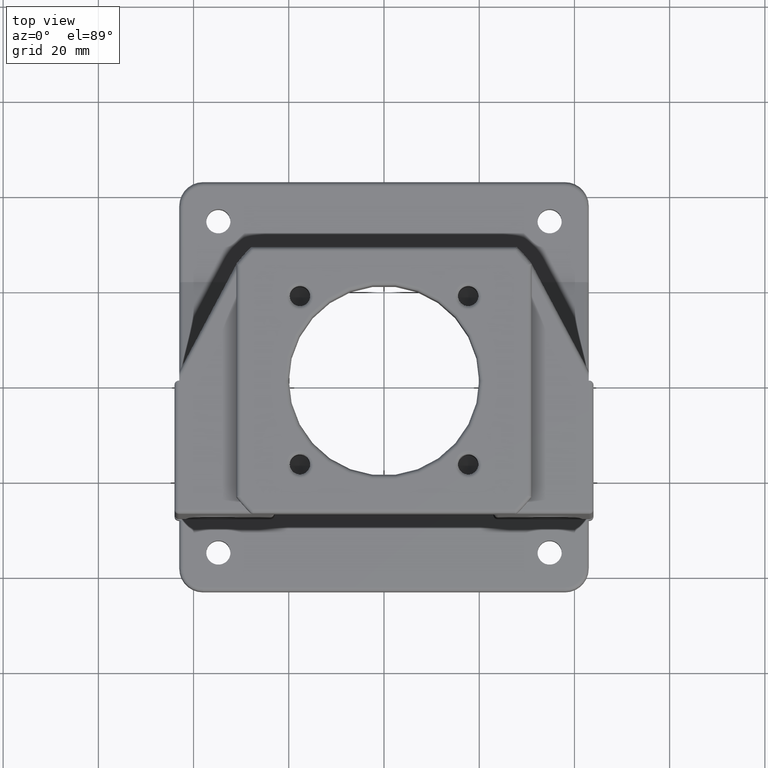
[diagram: clean part render]
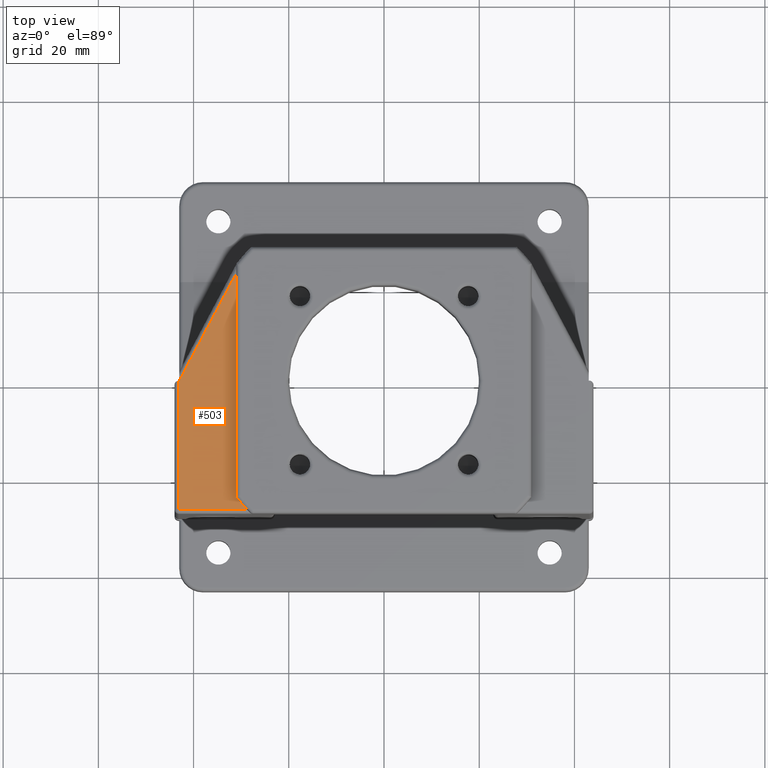
[diagram: same view with one face highlighted and labeled with its STEP entity id]
A machine part, top view. The second image highlights one B-rep face of the part: STEP entity #503.
In plain terms, the highlighted planar face has unit normal (0, 0, 1).
Its self-contained STEP definition (entity closure, byte-faithful):
#137 = PLANE ( 'NONE',  #4876 ) ;
#140 = DIRECTION ( 'NONE',  ( 1.000000000000000000, 0.0000000000000000000, -0.0000000000000000000 ) ) ;
#141 = DIRECTION ( 'NONE',  ( 0.0000000000000000000, 0.0000000000000000000, 1.000000000000000000 ) ) ;
#142 = CARTESIAN_POINT ( 'NONE',  ( -43.00000000000000000, -42.99999999999999300, 81.00000000000000000 ) ) ;
#503 = ADVANCED_FACE ( 'NONE', ( #6158 ), #137, .T. ) ;
#1037 = VERTEX_POINT ( 'NONE', #5414 ) ;
#1039 = VERTEX_POINT ( 'NONE', #5543 ) ;
#1347 = VECTOR ( 'NONE', #1612, 1000.000000000000000 ) ;
#1611 = CARTESIAN_POINT ( 'NONE',  ( -30.99999999999999600, 28.00000000000000000, 81.00000000000000000 ) ) ;
#1612 = DIRECTION ( 'NONE',  ( 1.239088197126291300E-016, -1.000000000000000000, 0.0000000000000000000 ) ) ;
#2226 = CARTESIAN_POINT ( 'NONE',  ( -43.10000000000001600, -27.09999999999999400, 81.00000000000000000 ) ) ;
#2236 = CARTESIAN_POINT ( 'NONE',  ( -43.10000000000002300, -0.2241512150735000500, 81.00000000000000000 ) ) ;
#2978 = VERTEX_POINT ( 'NONE', #3093 ) ;
#3093 = CARTESIAN_POINT ( 'NONE',  ( -28.73743203558704500, -27.10000000000028200, 81.00000000000000000 ) ) ;
#3127 = ORIENTED_EDGE ( 'NONE', *, *, #3904, .T. ) ;
#3130 = ORIENTED_EDGE ( 'NONE', *, *, #3905, .F. ) ;
#3131 = ORIENTED_EDGE ( 'NONE', *, *, #3903, .T. ) ;
#3132 = ORIENTED_EDGE ( 'NONE', *, *, #4013, .F. ) ;
#3133 = ORIENTED_EDGE ( 'NONE', *, *, #3906, .T. ) ;
#3386 = EDGE_LOOP ( 'NONE', ( #3127, #3131, #3130, #3132, #3133 ) ) ;
#3903 = EDGE_CURVE ( 'NONE', #4857, #2978, #4459, .T. ) ;
#3904 = EDGE_CURVE ( 'NONE', #4867, #4857, #4460, .T. ) ;
#3905 = EDGE_CURVE ( 'NONE', #1037, #2978, #6596, .T. ) ;
#3906 = EDGE_CURVE ( 'NONE', #1039, #4867, #4461, .T. ) ;
#4013 = EDGE_CURVE ( 'NONE', #1039, #1037, #4538, .T. ) ;
#4459 = LINE ( 'NONE', #4820, #6597 ) ;
#4460 = LINE ( 'NONE', #4813, #6599 ) ;
#4461 = LINE ( 'NONE', #4810, #6601 ) ;
#4538 = LINE ( 'NONE', #1611, #1347 ) ;
#4806 = DIRECTION ( 'NONE',  ( 0.0000000000000000000, 0.0000000000000000000, 1.000000000000000000 ) ) ;
#4808 = DIRECTION ( 'NONE',  ( 1.000000000000000000, 0.0000000000000000000, 0.0000000000000000000 ) ) ;
#4810 = CARTESIAN_POINT ( 'NONE',  ( -42.20513157367754100, 1.460926185800119700, 81.00000000000000000 ) ) ;
#4811 = DIRECTION ( 'NONE',  ( -0.4690207619133294800, -0.8831871403582821600, 0.0000000000000000000 ) ) ;
#4813 = CARTESIAN_POINT ( 'NONE',  ( -43.10000000000001600, -27.99999999999998900, 81.00000000000000000 ) ) ;
#4814 = DIRECTION ( 'NONE',  ( -2.478176394252582100E-016, -1.000000000000000000, 0.0000000000000000000 ) ) ;
#4815 = CARTESIAN_POINT ( 'NONE',  ( 0.0000000000000000000, 0.0000000000000000000, 81.00000000000000000 ) ) ;
#4820 = CARTESIAN_POINT ( 'NONE',  ( -27.86126343151006800, -27.09999999999999100, 81.00000000000000000 ) ) ;
#4821 = DIRECTION ( 'NONE',  ( 1.000000000000000000, 1.734723475976806800E-016, -0.0000000000000000000 ) ) ;
#4857 = VERTEX_POINT ( 'NONE', #2226 ) ;
#4867 = VERTEX_POINT ( 'NONE', #2236 ) ;
#4876 = AXIS2_PLACEMENT_3D ( 'NONE', #142, #141, #140 ) ;
#5414 = CARTESIAN_POINT ( 'NONE',  ( -30.99999999999998900, -24.47958332978730700, 81.00000000000000000 ) ) ;
#5543 = CARTESIAN_POINT ( 'NONE',  ( -30.99999999999999600, 22.56069173034396200, 81.00000000000000000 ) ) ;
#6158 = FACE_OUTER_BOUND ( 'NONE', #3386, .T. ) ;
#6596 = CIRCLE ( 'NONE', #6600, 39.50000000000000000 ) ;
#6597 = VECTOR ( 'NONE', #4821, 1000.000000000000000 ) ;
#6599 = VECTOR ( 'NONE', #4814, 1000.000000000000000 ) ;
#6600 = AXIS2_PLACEMENT_3D ( 'NONE', #4815, #4806, #4808 ) ;
#6601 = VECTOR ( 'NONE', #4811, 999.9999999999998900 ) ;